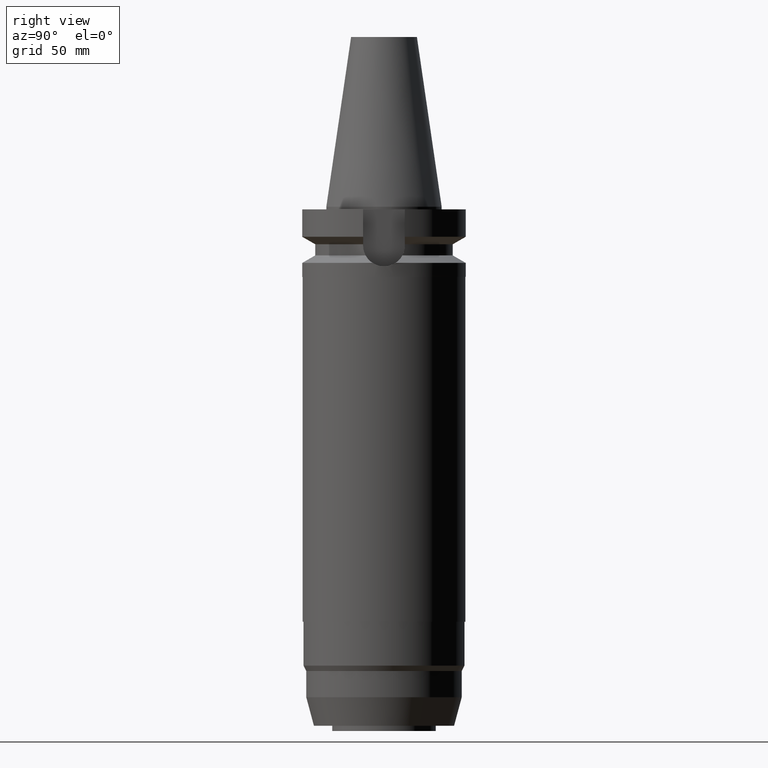
[diagram: clean part render]
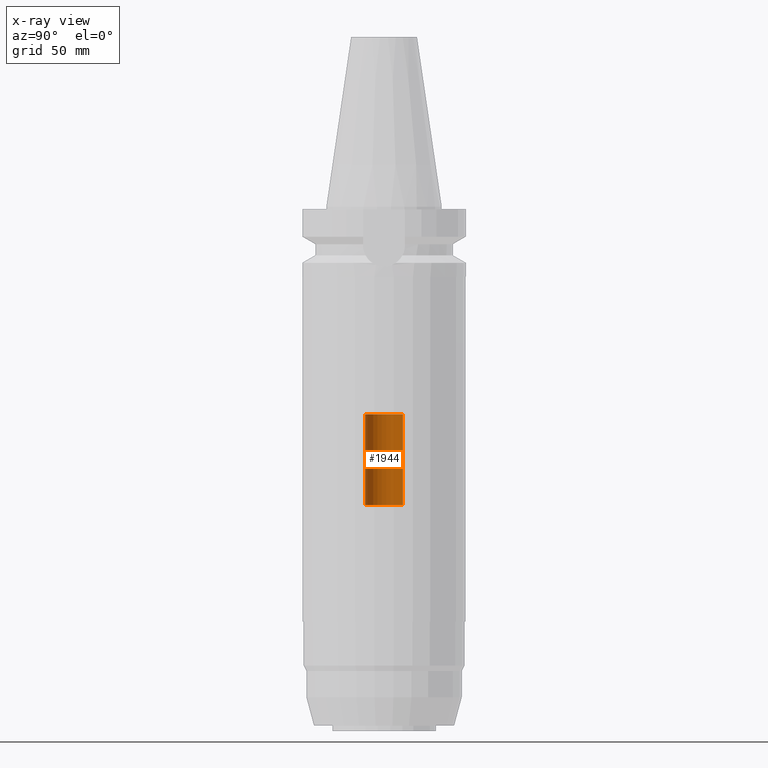
[diagram: x-ray — body ghosted, one internal face saturated and labeled with its STEP entity id]
A machine part, right view, then the same camera in x-ray: the body is ghosted and one INTERNAL B-rep face — a face not visible from any outside direction — is saturated and labeled: STEP entity #1944.
In plain terms, the highlighted cylindrical surface (edge-blend (fillet) strip) has radius 7.25 mm, axis along (0, 0, -1).
Its self-contained STEP definition (entity closure, byte-faithful):
#914=CARTESIAN_POINT('',(0.E0,2.189301082836E-14,-1.15E2));
#915=DIRECTION('',(0.E0,0.E0,-1.E0));
#916=DIRECTION('',(0.E0,-1.E0,0.E0));
#917=AXIS2_PLACEMENT_3D('',#914,#915,#916);
#930=DIRECTION('',(0.E0,0.E0,1.E0));
#931=VECTOR('',#930,3.5E1);
#932=CARTESIAN_POINT('',(0.E0,-7.25E0,-1.15E2));
#933=LINE('',#932,#931);
#937=DIRECTION('',(0.E0,0.E0,1.E0));
#938=VECTOR('',#937,3.5E1);
#939=CARTESIAN_POINT('',(0.E0,7.25E0,-1.15E2));
#940=LINE('',#939,#938);
#952=CARTESIAN_POINT('',(0.E0,2.189301082836E-14,-8.E1));
#953=DIRECTION('',(0.E0,0.E0,1.E0));
#954=DIRECTION('',(0.E0,1.E0,0.E0));
#955=AXIS2_PLACEMENT_3D('',#952,#953,#954);
#1090=CARTESIAN_POINT('',(0.E0,-7.25E0,-8.E1));
#1091=CARTESIAN_POINT('',(0.E0,7.25E0,-8.E1));
#1092=VERTEX_POINT('',#1090);
#1093=VERTEX_POINT('',#1091);
#1094=CARTESIAN_POINT('',(0.E0,7.25E0,-1.15E2));
#1095=VERTEX_POINT('',#1094);
#1096=CARTESIAN_POINT('',(0.E0,-7.25E0,-1.15E2));
#1097=VERTEX_POINT('',#1096);
#1930=CARTESIAN_POINT('',(0.E0,2.189301082836E-14,7.877E1));
#1931=DIRECTION('',(0.E0,0.E0,-1.E0));
#1932=DIRECTION('',(0.E0,-1.E0,0.E0));
#1933=AXIS2_PLACEMENT_3D('',#1930,#1931,#1932);
#1934=CYLINDRICAL_SURFACE('',#1933,7.25E0);
#1936=ORIENTED_EDGE('',*,*,#1935,.F.);
#1937=ORIENTED_EDGE('',*,*,#1923,.F.);
#1939=ORIENTED_EDGE('',*,*,#1938,.T.);
#1941=ORIENTED_EDGE('',*,*,#1940,.F.);
#1942=EDGE_LOOP('',(#1936,#1937,#1939,#1941));
#1943=FACE_OUTER_BOUND('',#1942,.F.);
#918=CIRCLE('',#917,7.25E0);
#956=CIRCLE('',#955,7.25E0);
#1923=EDGE_CURVE('',#1097,#1095,#918,.T.);
#1935=EDGE_CURVE('',#1095,#1093,#940,.T.);
#1938=EDGE_CURVE('',#1097,#1092,#933,.T.);
#1940=EDGE_CURVE('',#1093,#1092,#956,.T.);
#1944=ADVANCED_FACE('',(#1943),#1934,.F.);